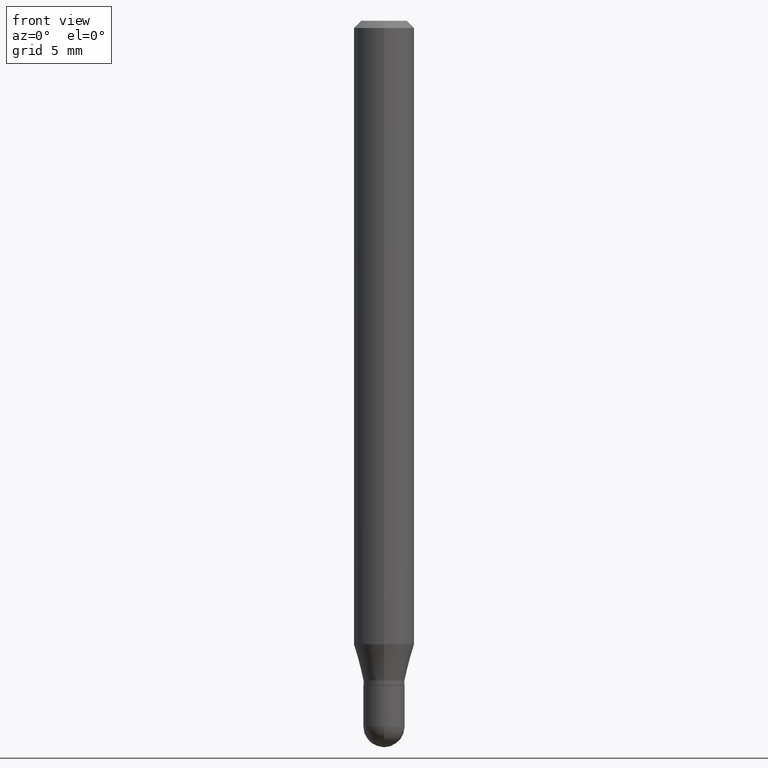
[diagram: clean part render]
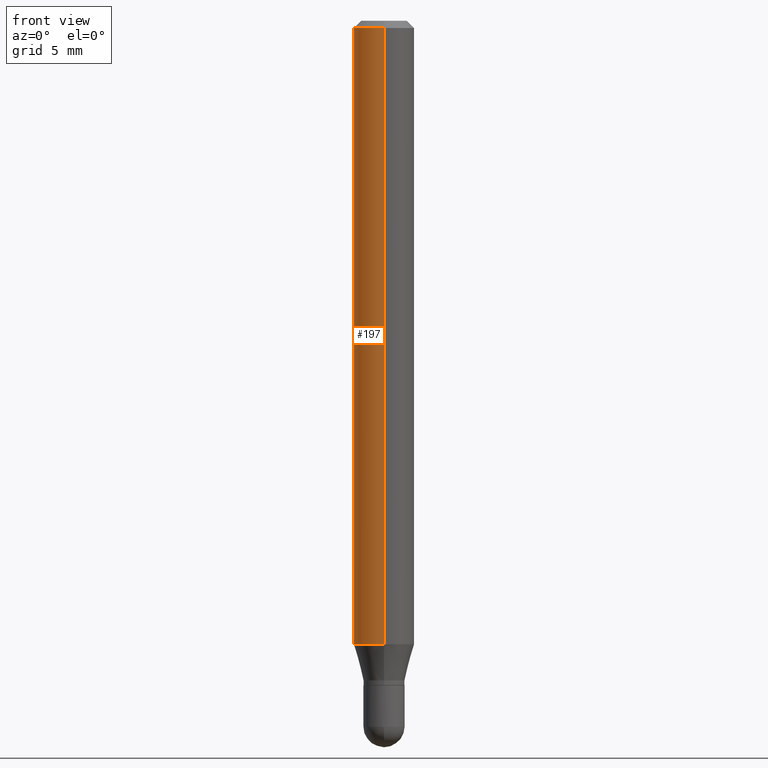
[diagram: same view with one face highlighted and labeled with its STEP entity id]
A machine part, front view. The second image highlights one B-rep face of the part: STEP entity #197.
In plain terms, the highlighted cylindrical surface (edge-blend (fillet) strip) has radius 1.5875 mm, axis along (-0, 0, 1).
Its self-contained STEP definition (entity closure, byte-faithful):
#3 = LINE ( 'NONE', #79, #253 ) ;
#20 = DIRECTION ( 'NONE',  ( -2.445394468719780989E-29, 3.491587794324560733E-15, 1.000000000000000000 ) ) ;
#40 = AXIS2_PLACEMENT_3D ( 'NONE', #377, #218, #48 ) ;
#48 = DIRECTION ( 'NONE',  ( -6.982962677686265922E-15, -1.000000000000000000, 4.370956789862821150E-15 ) ) ;
#77 = EDGE_CURVE ( 'NONE', #303, #171, #273, .T. ) ;
#79 = CARTESIAN_POINT ( 'NONE',  ( 4.440892098500625669E-16, 0.06250000000000000000, -2.182242371452850211E-16 ) ) ;
#98 = EDGE_CURVE ( 'NONE', #326, #142, #3, .T. ) ;
#141 = CARTESIAN_POINT ( 'NONE',  ( 3.668091703079751796E-31, -5.237381691486955188E-17, -0.01500000000000032904 ) ) ;
#142 = VERTEX_POINT ( 'NONE', #157 ) ;
#155 = AXIS2_PLACEMENT_3D ( 'NONE', #141, #397, #247 ) ;
#157 = CARTESIAN_POINT ( 'NONE',  ( 4.440892098500942692E-16, 0.06249999999999995143, -0.01500000000000054588 ) ) ;
#160 = ORIENTED_EDGE ( 'NONE', *, *, #77, .T. ) ;
#163 = AXIS2_PLACEMENT_3D ( 'NONE', #374, #20, #492 ) ;
#166 = EDGE_CURVE ( 'NONE', #326, #303, #469, .T. ) ;
#171 = VERTEX_POINT ( 'NONE', #327 ) ;
#197 = ADVANCED_FACE ( 'NONE', ( #225 ), #367, .T. ) ;
#218 = DIRECTION ( 'NONE',  ( -2.445394468719780989E-29, 3.491587794324560733E-15, 1.000000000000000000 ) ) ;
#225 = FACE_OUTER_BOUND ( 'NONE', #383, .T. ) ;
#235 = CARTESIAN_POINT ( 'NONE',  ( 4.440892098500941706E-16, 0.06249999999999553135, -1.287358983848623017 ) ) ;
#244 = DIRECTION ( 'NONE',  ( -2.445394468719780989E-29, 3.491587794324560733E-15, 1.000000000000000000 ) ) ;
#247 = DIRECTION ( 'NONE',  ( -6.982962677686265922E-15, -1.000000000000000000, 3.483106191921935554E-15 ) ) ;
#253 = VECTOR ( 'NONE', #244, 39.37007874015748143 ) ;
#258 = ORIENTED_EDGE ( 'NONE', *, *, #264, .F. ) ;
#259 = VECTOR ( 'NONE', #394, 39.37007874015748143 ) ;
#264 = EDGE_CURVE ( 'NONE', #142, #171, #428, .T. ) ;
#273 = LINE ( 'NONE', #311, #259 ) ;
#303 = VERTEX_POINT ( 'NONE', #405 ) ;
#311 = CARTESIAN_POINT ( 'NONE',  ( -4.364351673553916201E-16, -0.06250000000000000000, 2.182242371452850211E-16 ) ) ;
#322 = ORIENTED_EDGE ( 'NONE', *, *, #98, .F. ) ;
#326 = VERTEX_POINT ( 'NONE', #235 ) ;
#327 = CARTESIAN_POINT ( 'NONE',  ( -4.364351673553912750E-16, -0.06250000000000005551, -0.01500000000000011047 ) ) ;
#367 = CYLINDRICAL_SURFACE ( 'NONE', #163, 0.06250000000000000000 ) ;
#374 = CARTESIAN_POINT ( 'NONE',  ( 0.000000000000000000, 0.000000000000000000, 0.000000000000000000 ) ) ;
#377 = CARTESIAN_POINT ( 'NONE',  ( 3.148100538360140027E-29, -4.494926914919920773E-15, -1.287358983848622795 ) ) ;
#383 = EDGE_LOOP ( 'NONE', ( #322, #473, #160, #258 ) ) ;
#394 = DIRECTION ( 'NONE',  ( -2.445394468719780989E-29, 3.491587794324560733E-15, 1.000000000000000000 ) ) ;
#397 = DIRECTION ( 'NONE',  ( -2.445394468719780989E-29, 3.491587794324560733E-15, 1.000000000000000000 ) ) ;
#405 = CARTESIAN_POINT ( 'NONE',  ( -4.364351673553598192E-16, -0.06250000000000445477, -1.287358983848622573 ) ) ;
#428 = CIRCLE ( 'NONE', #155, 0.06250000000000000000 ) ;
#469 = CIRCLE ( 'NONE', #40, 0.06250000000000000000 ) ;
#473 = ORIENTED_EDGE ( 'NONE', *, *, #166, .T. ) ;
#492 = DIRECTION ( 'NONE',  ( -6.982962677686265922E-15, -1.000000000000000000, 3.491587794324560338E-15 ) ) ;